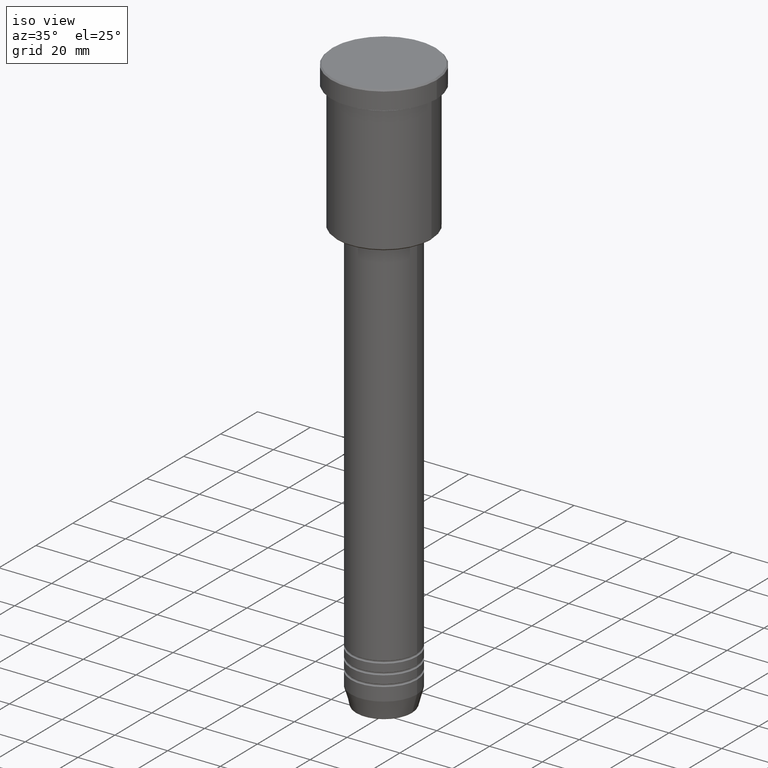
[diagram: clean part render]
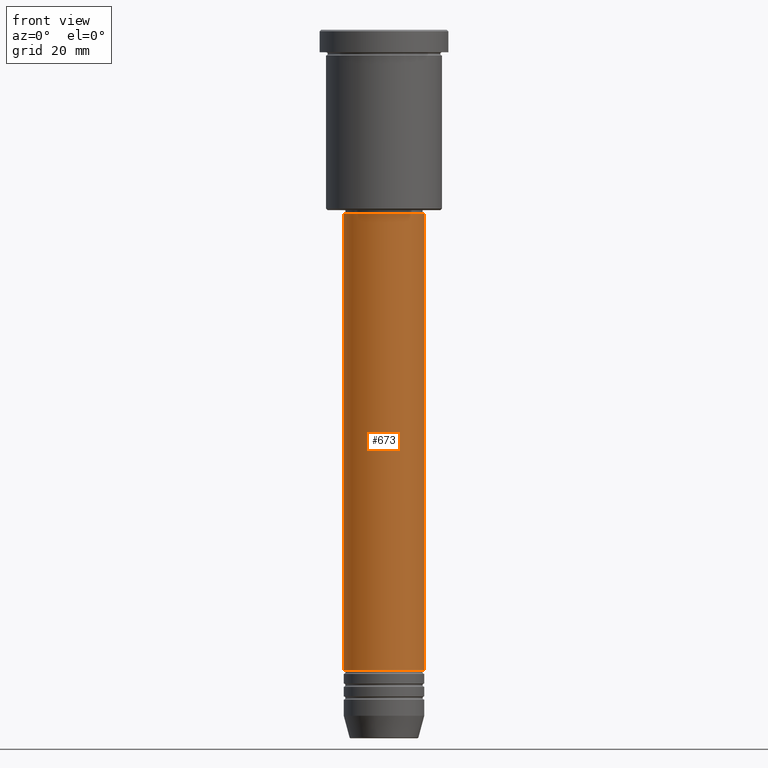
[diagram: tour spotlight — one face highlighted and labeled with its STEP entity id]
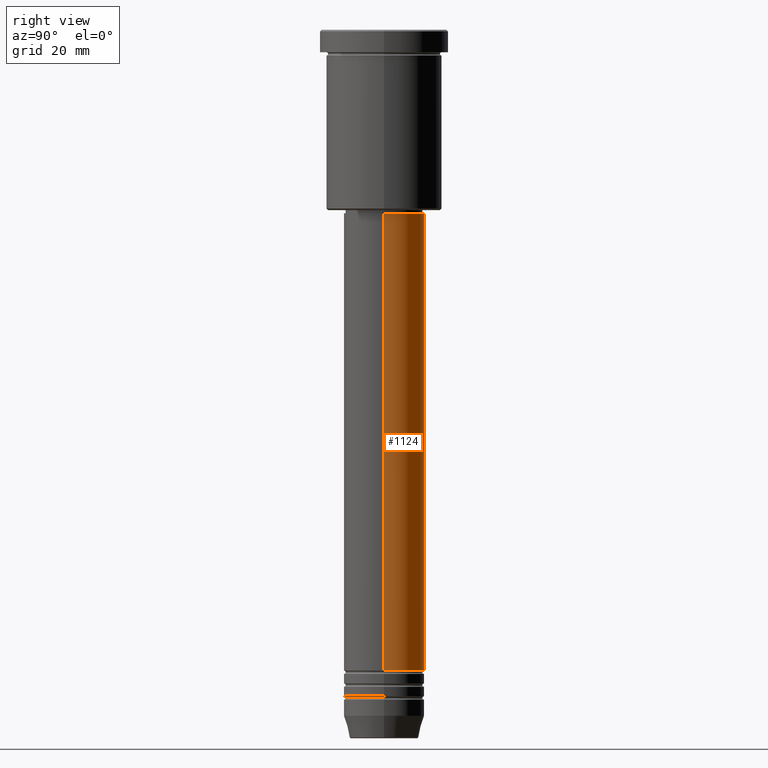
[diagram: tour spotlight — one face highlighted and labeled with its STEP entity id]
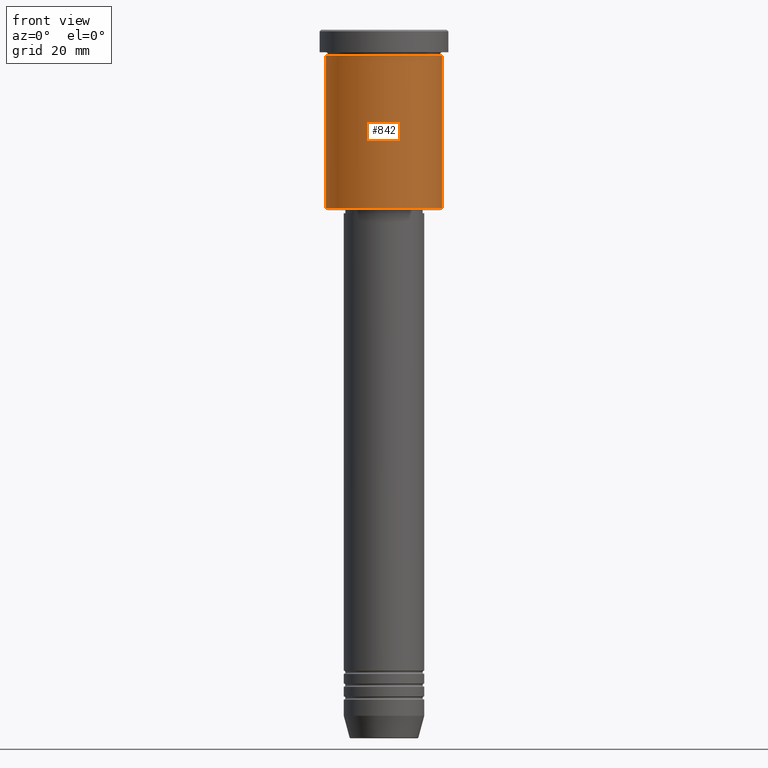
[diagram: tour spotlight — one face highlighted and labeled with its STEP entity id]
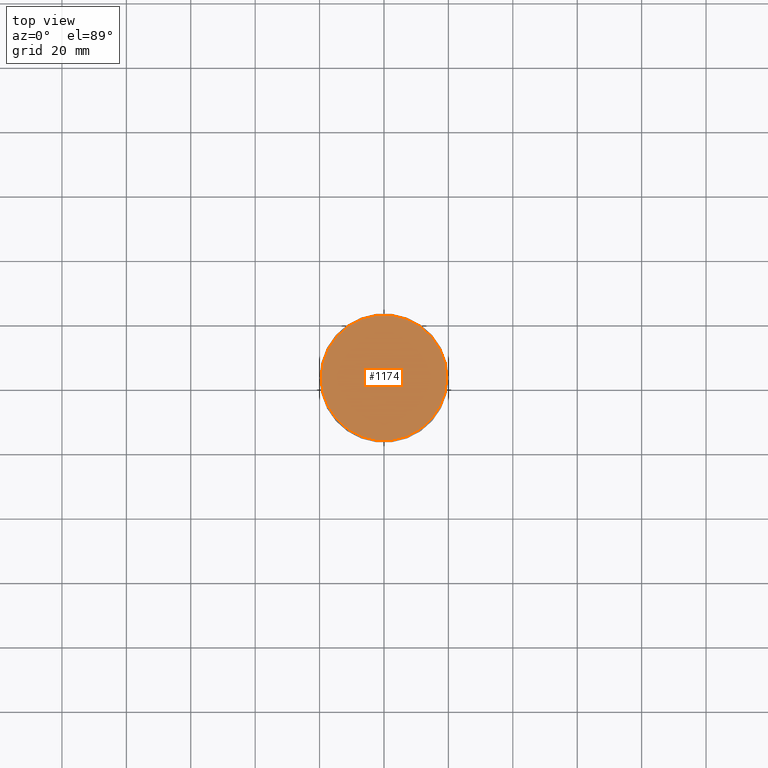
[diagram: tour spotlight — one face highlighted and labeled with its STEP entity id]
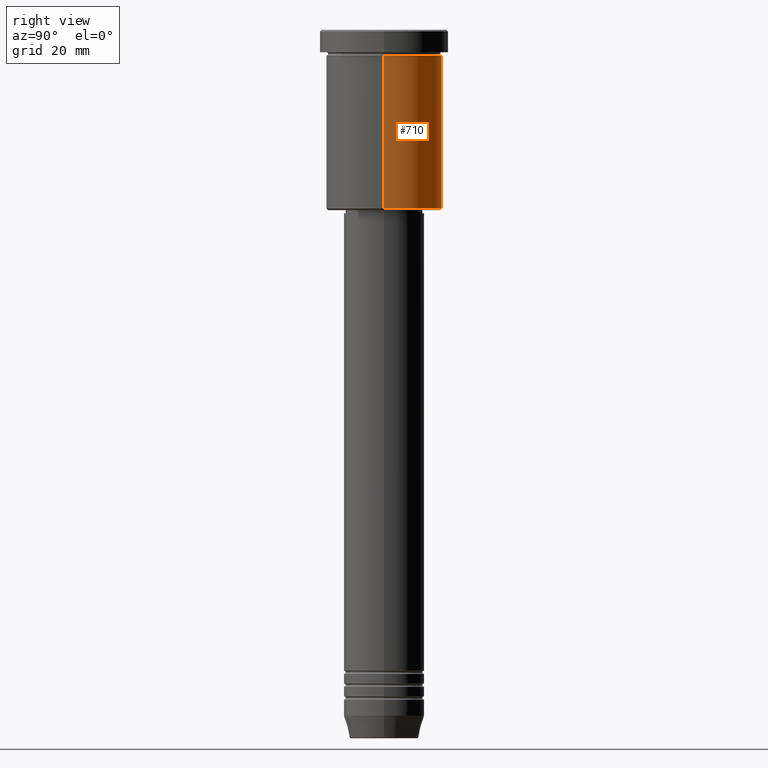
[diagram: tour spotlight — one face highlighted and labeled with its STEP entity id]
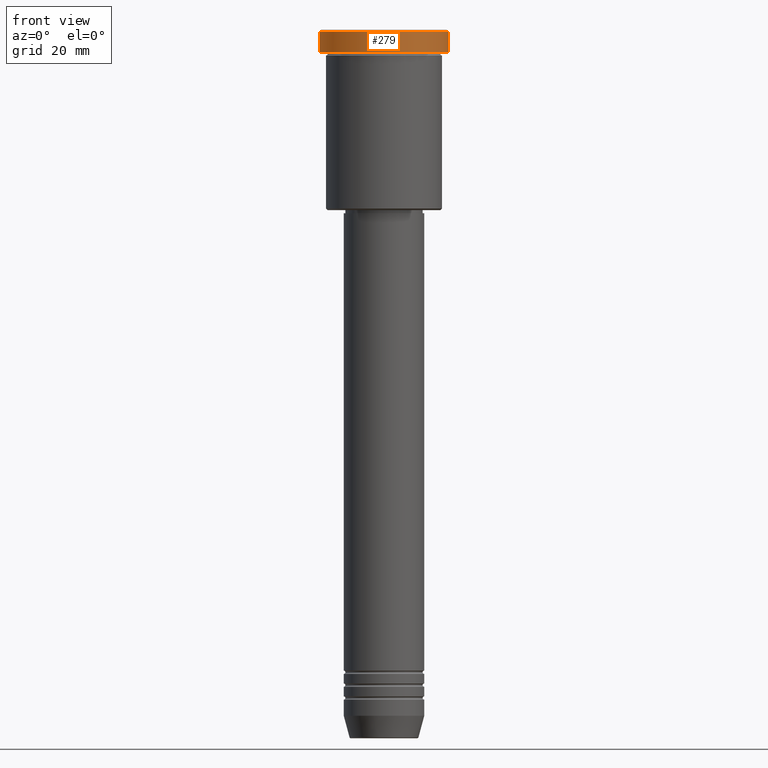
[diagram: tour spotlight — one face highlighted and labeled with its STEP entity id]
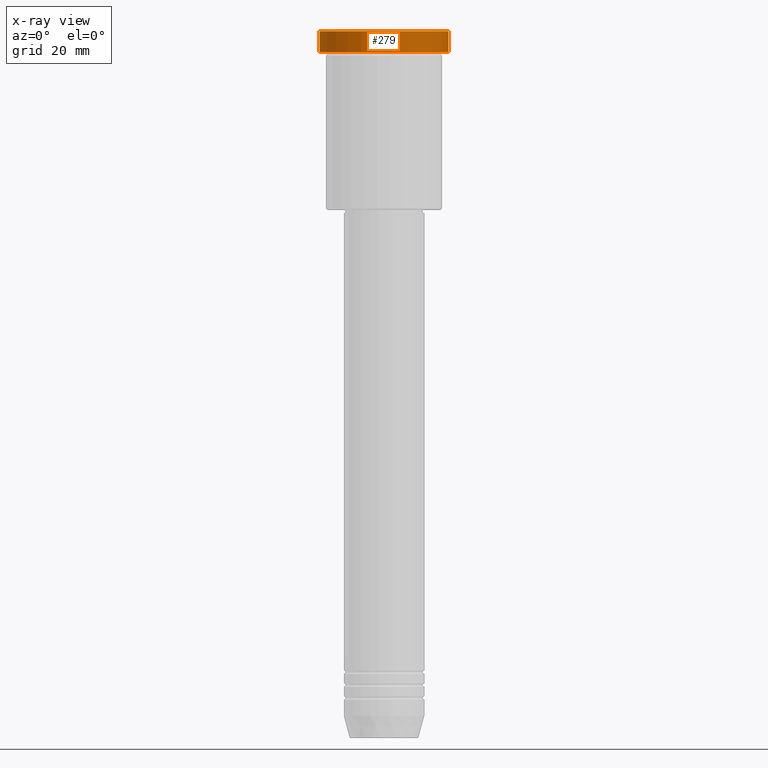
[diagram: x-ray of the same camera — body ghosted, this tour face saturated]
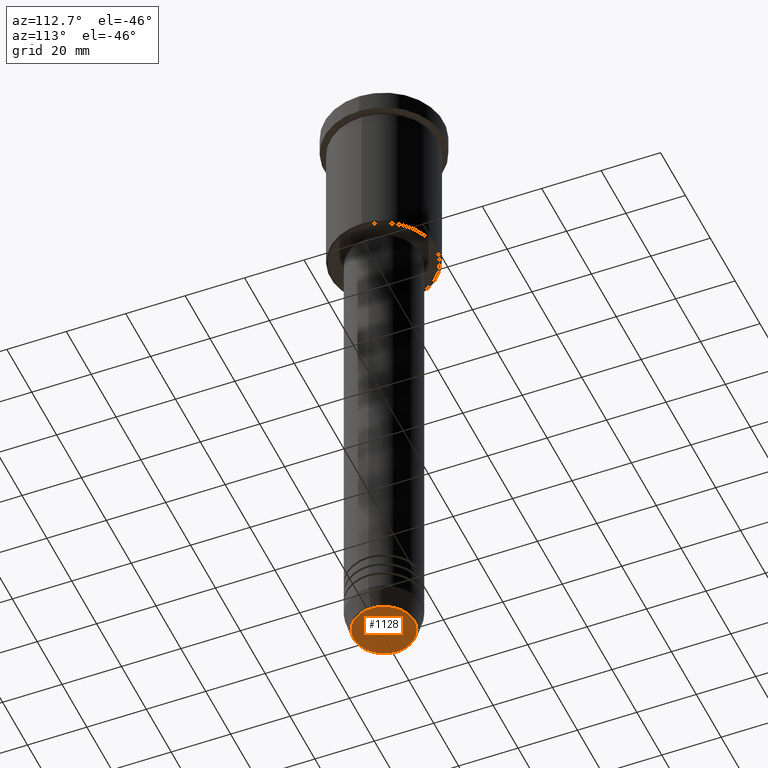
[diagram: tour spotlight — one face highlighted and labeled with its STEP entity id]
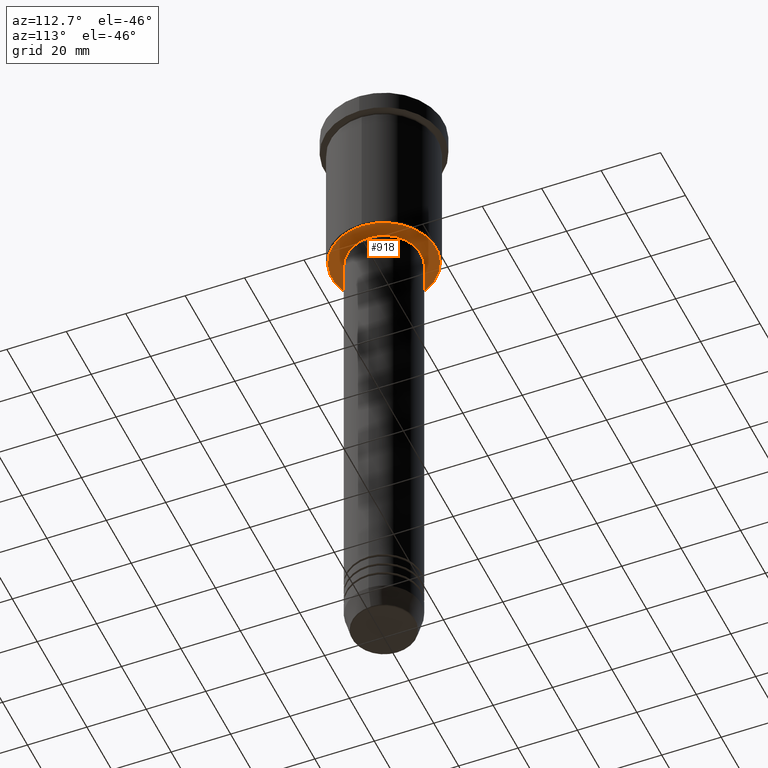
[diagram: tour spotlight — one face highlighted and labeled with its STEP entity id]
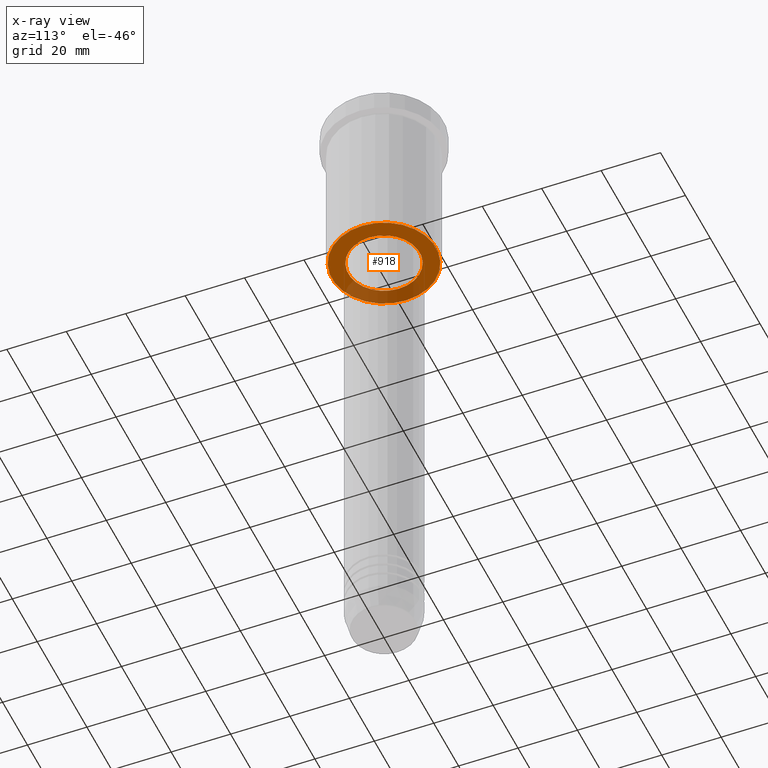
[diagram: x-ray of the same camera — body ghosted, this tour face saturated]
A machine part: a face-by-face anatomy tour. The part has 43 B-rep faces; the first image is the clean iso view, then the 8 largest visible faces are spotlighted one at a time (largest first), each with its STEP entity span.

Face 1 — front view, entity #673. In plain terms, the highlighted cylindrical surface (partial cylindrical patch) has radius 12.5 mm, axis along (-0, -0, 1).
Definition (entity closure, byte-faithful):
#49 = VERTEX_POINT ( 'NONE', #917 ) ;
#58 = CARTESIAN_POINT ( 'NONE',  ( 12.50000000000000000, 0.000000000000000000, -57.00000000000002842 ) ) ;
#86 = CARTESIAN_POINT ( 'NONE',  ( -12.50000000000000000, 1.530808498934191521E-15, -198.9999999999999716 ) ) ;
#124 = CARTESIAN_POINT ( 'NONE',  ( -12.50000000000000000, 1.530808498934191521E-15, -57.00000000000002842 ) ) ;
#130 = CARTESIAN_POINT ( 'NONE',  ( 0.000000000000000000, 0.000000000000000000, 0.000000000000000000 ) ) ;
#202 = VERTEX_POINT ( 'NONE', #86 ) ;
#234 = VERTEX_POINT ( 'NONE', #58 ) ;
#236 = DIRECTION ( 'NONE',  ( -0.000000000000000000, -0.000000000000000000, 1.000000000000000000 ) ) ;
#243 = CIRCLE ( 'NONE', #774, 12.50000000000000000 ) ;
#324 = ORIENTED_EDGE ( 'NONE', *, *, #818, .T. ) ;
#325 = LINE ( 'NONE', #511, #1106 ) ;
#331 = EDGE_CURVE ( 'NONE', #202, #695, #1144, .T. ) ;
#338 = EDGE_CURVE ( 'NONE', #695, #234, #1079, .T. ) ;
#461 = DIRECTION ( 'NONE',  ( -0.000000000000000000, -0.000000000000000000, 1.000000000000000000 ) ) ;
#493 = FACE_OUTER_BOUND ( 'NONE', #788, .T. ) ;
#511 = CARTESIAN_POINT ( 'NONE',  ( 12.50000000000000000, 0.000000000000000000, 0.000000000000000000 ) ) ;
#546 = DIRECTION ( 'NONE',  ( 1.000000000000000000, 0.000000000000000000, 0.000000000000000000 ) ) ;
#569 = AXIS2_PLACEMENT_3D ( 'NONE', #130, #573, #759 ) ;
#573 = DIRECTION ( 'NONE',  ( -0.000000000000000000, -0.000000000000000000, 1.000000000000000000 ) ) ;
#646 = DIRECTION ( 'NONE',  ( 1.000000000000000000, 0.000000000000000000, 0.000000000000000000 ) ) ;
#672 = CARTESIAN_POINT ( 'NONE',  ( -12.50000000000000000, 1.530808498934191521E-15, 0.000000000000000000 ) ) ;
#673 = ADVANCED_FACE ( 'NONE', ( #493 ), #743, .T. ) ;
#695 = VERTEX_POINT ( 'NONE', #124 ) ;
#737 = DIRECTION ( 'NONE',  ( -0.000000000000000000, -0.000000000000000000, 1.000000000000000000 ) ) ;
#743 = CYLINDRICAL_SURFACE ( 'NONE', #569, 12.50000000000000000 ) ;
#759 = DIRECTION ( 'NONE',  ( 1.000000000000000000, 0.000000000000000000, 0.000000000000000000 ) ) ;
#762 = CARTESIAN_POINT ( 'NONE',  ( 0.000000000000000000, 0.000000000000000000, -198.9999999999999716 ) ) ;
#774 = AXIS2_PLACEMENT_3D ( 'NONE', #762, #737, #546 ) ;
#786 = ORIENTED_EDGE ( 'NONE', *, *, #338, .F. ) ;
#788 = EDGE_LOOP ( 'NONE', ( #1123, #324, #1063, #786 ) ) ;
#804 = EDGE_CURVE ( 'NONE', #49, #234, #325, .T. ) ;
#818 = EDGE_CURVE ( 'NONE', #202, #49, #243, .T. ) ;
#875 = VECTOR ( 'NONE', #940, 1000.000000000000000 ) ;
#917 = CARTESIAN_POINT ( 'NONE',  ( 12.50000000000000000, 0.000000000000000000, -198.9999999999999716 ) ) ;
#922 = CARTESIAN_POINT ( 'NONE',  ( 0.000000000000000000, 0.000000000000000000, -57.00000000000002842 ) ) ;
#927 = AXIS2_PLACEMENT_3D ( 'NONE', #922, #461, #646 ) ;
#940 = DIRECTION ( 'NONE',  ( -0.000000000000000000, -0.000000000000000000, 1.000000000000000000 ) ) ;
#1063 = ORIENTED_EDGE ( 'NONE', *, *, #804, .T. ) ;
#1079 = CIRCLE ( 'NONE', #927, 12.50000000000000000 ) ;
#1106 = VECTOR ( 'NONE', #236, 1000.000000000000000 ) ;
#1123 = ORIENTED_EDGE ( 'NONE', *, *, #331, .F. ) ;
#1144 = LINE ( 'NONE', #672, #875 ) ;

Face 2 — right view, entity #1124. In plain terms, the highlighted cylindrical surface (partial cylindrical patch) has radius 12.5 mm, axis along (-0, -0, 1).
Definition (entity closure, byte-faithful):
#2 = CYLINDRICAL_SURFACE ( 'NONE', #796, 12.50000000000000000 ) ;
#4 = EDGE_CURVE ( 'NONE', #49, #202, #718, .T. ) ;
#49 = VERTEX_POINT ( 'NONE', #917 ) ;
#52 = ORIENTED_EDGE ( 'NONE', *, *, #331, .T. ) ;
#58 = CARTESIAN_POINT ( 'NONE',  ( 12.50000000000000000, 0.000000000000000000, -57.00000000000002842 ) ) ;
#86 = CARTESIAN_POINT ( 'NONE',  ( -12.50000000000000000, 1.530808498934191521E-15, -198.9999999999999716 ) ) ;
#106 = ORIENTED_EDGE ( 'NONE', *, *, #900, .F. ) ;
#124 = CARTESIAN_POINT ( 'NONE',  ( -12.50000000000000000, 1.530808498934191521E-15, -57.00000000000002842 ) ) ;
#173 = AXIS2_PLACEMENT_3D ( 'NONE', #664, #1036, #207 ) ;
#202 = VERTEX_POINT ( 'NONE', #86 ) ;
#207 = DIRECTION ( 'NONE',  ( 1.000000000000000000, 0.000000000000000000, 0.000000000000000000 ) ) ;
#234 = VERTEX_POINT ( 'NONE', #58 ) ;
#236 = DIRECTION ( 'NONE',  ( -0.000000000000000000, -0.000000000000000000, 1.000000000000000000 ) ) ;
#325 = LINE ( 'NONE', #511, #1106 ) ;
#331 = EDGE_CURVE ( 'NONE', #202, #695, #1144, .T. ) ;
#350 = DIRECTION ( 'NONE',  ( -0.000000000000000000, -0.000000000000000000, 1.000000000000000000 ) ) ;
#423 = ORIENTED_EDGE ( 'NONE', *, *, #804, .F. ) ;
#459 = CARTESIAN_POINT ( 'NONE',  ( 0.000000000000000000, 0.000000000000000000, 0.000000000000000000 ) ) ;
#511 = CARTESIAN_POINT ( 'NONE',  ( 12.50000000000000000, 0.000000000000000000, 0.000000000000000000 ) ) ;
#644 = DIRECTION ( 'NONE',  ( 1.000000000000000000, 0.000000000000000000, 0.000000000000000000 ) ) ;
#664 = CARTESIAN_POINT ( 'NONE',  ( 0.000000000000000000, 0.000000000000000000, -57.00000000000002842 ) ) ;
#672 = CARTESIAN_POINT ( 'NONE',  ( -12.50000000000000000, 1.530808498934191521E-15, 0.000000000000000000 ) ) ;
#680 = CIRCLE ( 'NONE', #173, 12.50000000000000000 ) ;
#695 = VERTEX_POINT ( 'NONE', #124 ) ;
#718 = CIRCLE ( 'NONE', #990, 12.50000000000000000 ) ;
#796 = AXIS2_PLACEMENT_3D ( 'NONE', #459, #829, #644 ) ;
#804 = EDGE_CURVE ( 'NONE', #49, #234, #325, .T. ) ;
#829 = DIRECTION ( 'NONE',  ( -0.000000000000000000, -0.000000000000000000, 1.000000000000000000 ) ) ;
#875 = VECTOR ( 'NONE', #940, 1000.000000000000000 ) ;
#889 = DIRECTION ( 'NONE',  ( 1.000000000000000000, 0.000000000000000000, 0.000000000000000000 ) ) ;
#900 = EDGE_CURVE ( 'NONE', #234, #695, #680, .T. ) ;
#917 = CARTESIAN_POINT ( 'NONE',  ( 12.50000000000000000, 0.000000000000000000, -198.9999999999999716 ) ) ;
#940 = DIRECTION ( 'NONE',  ( -0.000000000000000000, -0.000000000000000000, 1.000000000000000000 ) ) ;
#990 = AXIS2_PLACEMENT_3D ( 'NONE', #1072, #350, #889 ) ;
#1036 = DIRECTION ( 'NONE',  ( -0.000000000000000000, -0.000000000000000000, 1.000000000000000000 ) ) ;
#1072 = CARTESIAN_POINT ( 'NONE',  ( 0.000000000000000000, 0.000000000000000000, -198.9999999999999716 ) ) ;
#1106 = VECTOR ( 'NONE', #236, 1000.000000000000000 ) ;
#1110 = FACE_OUTER_BOUND ( 'NONE', #1172, .T. ) ;
#1113 = ORIENTED_EDGE ( 'NONE', *, *, #4, .T. ) ;
#1124 = ADVANCED_FACE ( 'NONE', ( #1110 ), #2, .T. ) ;
#1144 = LINE ( 'NONE', #672, #875 ) ;
#1172 = EDGE_LOOP ( 'NONE', ( #1113, #52, #106, #423 ) ) ;

Face 3 — front view, entity #842. In plain terms, the highlighted cylindrical surface (partial cylindrical patch) has radius 18 mm, axis along (-0, -0, 1).
Definition (entity closure, byte-faithful):
#15 = LINE ( 'NONE', #457, #306 ) ;
#21 = FACE_OUTER_BOUND ( 'NONE', #1082, .T. ) ;
#60 = AXIS2_PLACEMENT_3D ( 'NONE', #298, #440, #712 ) ;
#83 = EDGE_CURVE ( 'NONE', #815, #431, #15, .T. ) ;
#221 = LINE ( 'NONE', #856, #667 ) ;
#261 = CYLINDRICAL_SURFACE ( 'NONE', #663, 18.00000000000000000 ) ;
#263 = CIRCLE ( 'NONE', #615, 18.00000000000000000 ) ;
#298 = CARTESIAN_POINT ( 'NONE',  ( 0.000000000000000000, 0.000000000000000000, -7.999999999999996447 ) ) ;
#306 = VECTOR ( 'NONE', #562, 1000.000000000000000 ) ;
#343 = ORIENTED_EDGE ( 'NONE', *, *, #585, .F. ) ;
#407 = DIRECTION ( 'NONE',  ( -0.000000000000000000, -0.000000000000000000, 1.000000000000000000 ) ) ;
#424 = CARTESIAN_POINT ( 'NONE',  ( 0.000000000000000000, 0.000000000000000000, 0.000000000000000000 ) ) ;
#431 = VERTEX_POINT ( 'NONE', #689 ) ;
#440 = DIRECTION ( 'NONE',  ( -0.000000000000000000, -0.000000000000000000, 1.000000000000000000 ) ) ;
#442 = CARTESIAN_POINT ( 'NONE',  ( 0.000000000000000000, 0.000000000000000000, -55.50000000000004263 ) ) ;
#457 = CARTESIAN_POINT ( 'NONE',  ( 18.00000000000000000, 0.000000000000000000, 0.000000000000000000 ) ) ;
#544 = VERTEX_POINT ( 'NONE', #761 ) ;
#562 = DIRECTION ( 'NONE',  ( -0.000000000000000000, -0.000000000000000000, 1.000000000000000000 ) ) ;
#585 = EDGE_CURVE ( 'NONE', #544, #1014, #221, .T. ) ;
#601 = EDGE_CURVE ( 'NONE', #1014, #431, #814, .T. ) ;
#615 = AXIS2_PLACEMENT_3D ( 'NONE', #442, #1089, #1173 ) ;
#663 = AXIS2_PLACEMENT_3D ( 'NONE', #424, #1016, #837 ) ;
#667 = VECTOR ( 'NONE', #407, 1000.000000000000000 ) ;
#689 = CARTESIAN_POINT ( 'NONE',  ( 18.00000000000000000, 0.000000000000000000, -7.999999999999996447 ) ) ;
#712 = DIRECTION ( 'NONE',  ( 1.000000000000000000, 0.000000000000000000, 0.000000000000000000 ) ) ;
#761 = CARTESIAN_POINT ( 'NONE',  ( -18.00000000000000000, 2.204364238465235428E-15, -55.50000000000004263 ) ) ;
#772 = CARTESIAN_POINT ( 'NONE',  ( 18.00000000000000000, 0.000000000000000000, -55.50000000000004263 ) ) ;
#814 = CIRCLE ( 'NONE', #60, 18.00000000000000000 ) ;
#815 = VERTEX_POINT ( 'NONE', #772 ) ;
#837 = DIRECTION ( 'NONE',  ( 1.000000000000000000, 0.000000000000000000, 0.000000000000000000 ) ) ;
#842 = ADVANCED_FACE ( 'NONE', ( #21 ), #261, .T. ) ;
#856 = CARTESIAN_POINT ( 'NONE',  ( -18.00000000000000000, 2.204364238465235428E-15, 0.000000000000000000 ) ) ;
#938 = ORIENTED_EDGE ( 'NONE', *, *, #83, .T. ) ;
#983 = CARTESIAN_POINT ( 'NONE',  ( -18.00000000000000000, 2.204364238465235428E-15, -7.999999999999996447 ) ) ;
#1014 = VERTEX_POINT ( 'NONE', #983 ) ;
#1016 = DIRECTION ( 'NONE',  ( -0.000000000000000000, -0.000000000000000000, 1.000000000000000000 ) ) ;
#1065 = EDGE_CURVE ( 'NONE', #544, #815, #263, .T. ) ;
#1082 = EDGE_LOOP ( 'NONE', ( #343, #1137, #938, #1142 ) ) ;
#1089 = DIRECTION ( 'NONE',  ( -0.000000000000000000, -0.000000000000000000, 1.000000000000000000 ) ) ;
#1137 = ORIENTED_EDGE ( 'NONE', *, *, #1065, .T. ) ;
#1142 = ORIENTED_EDGE ( 'NONE', *, *, #601, .F. ) ;
#1173 = DIRECTION ( 'NONE',  ( -1.000000000000000000, 0.000000000000000000, 0.000000000000000000 ) ) ;

Face 4 — top view, entity #1174. In plain terms, the highlighted planar face has unit normal (0, -0, 1).
Definition (entity closure, byte-faithful):
#3 = CARTESIAN_POINT ( 'NONE',  ( 19.49999999999998934, 2.418677428316021937E-15, 0.000000000000000000 ) ) ;
#65 = EDGE_CURVE ( 'NONE', #288, #409, #616, .T. ) ;
#103 = EDGE_LOOP ( 'NONE', ( #460, #1091 ) ) ;
#192 = AXIS2_PLACEMENT_3D ( 'NONE', #760, #674, #1107 ) ;
#277 = CIRCLE ( 'NONE', #873, 19.49999999999998934 ) ;
#288 = VERTEX_POINT ( 'NONE', #367 ) ;
#351 = AXIS2_PLACEMENT_3D ( 'NONE', #563, #738, #1025 ) ;
#367 = CARTESIAN_POINT ( 'NONE',  ( -19.49999999999998934, 0.000000000000000000, 0.000000000000000000 ) ) ;
#368 = FACE_OUTER_BOUND ( 'NONE', #103, .T. ) ;
#409 = VERTEX_POINT ( 'NONE', #3 ) ;
#460 = ORIENTED_EDGE ( 'NONE', *, *, #65, .T. ) ;
#563 = CARTESIAN_POINT ( 'NONE',  ( 0.000000000000000000, 0.000000000000000000, 0.000000000000000000 ) ) ;
#616 = CIRCLE ( 'NONE', #192, 19.49999999999998934 ) ;
#674 = DIRECTION ( 'NONE',  ( -0.000000000000000000, -0.000000000000000000, 1.000000000000000000 ) ) ;
#738 = DIRECTION ( 'NONE',  ( 0.000000000000000000, -0.000000000000000000, 1.000000000000000000 ) ) ;
#760 = CARTESIAN_POINT ( 'NONE',  ( 0.000000000000000000, 0.000000000000000000, 0.000000000000000000 ) ) ;
#768 = DIRECTION ( 'NONE',  ( -0.000000000000000000, -0.000000000000000000, 1.000000000000000000 ) ) ;
#792 = EDGE_CURVE ( 'NONE', #409, #288, #277, .T. ) ;
#865 = CARTESIAN_POINT ( 'NONE',  ( 0.000000000000000000, 0.000000000000000000, 0.000000000000000000 ) ) ;
#873 = AXIS2_PLACEMENT_3D ( 'NONE', #865, #768, #1156 ) ;
#995 = PLANE ( 'NONE',  #351 ) ;
#1025 = DIRECTION ( 'NONE',  ( 1.000000000000000000, 0.000000000000000000, 0.000000000000000000 ) ) ;
#1091 = ORIENTED_EDGE ( 'NONE', *, *, #792, .T. ) ;
#1107 = DIRECTION ( 'NONE',  ( 1.000000000000000000, 0.000000000000000000, 0.000000000000000000 ) ) ;
#1156 = DIRECTION ( 'NONE',  ( 1.000000000000000000, 0.000000000000000000, 0.000000000000000000 ) ) ;
#1174 = ADVANCED_FACE ( 'NONE', ( #368 ), #995, .T. ) ;

Face 5 — right view, entity #710. In plain terms, the highlighted cylindrical surface (partial cylindrical patch) has radius 18 mm, axis along (-0, -0, 1).
Definition (entity closure, byte-faithful):
#15 = LINE ( 'NONE', #457, #306 ) ;
#43 = DIRECTION ( 'NONE',  ( -1.000000000000000000, 0.000000000000000000, 0.000000000000000000 ) ) ;
#83 = EDGE_CURVE ( 'NONE', #815, #431, #15, .T. ) ;
#138 = AXIS2_PLACEMENT_3D ( 'NONE', #777, #344, #787 ) ;
#160 = EDGE_CURVE ( 'NONE', #815, #544, #451, .T. ) ;
#221 = LINE ( 'NONE', #856, #667 ) ;
#235 = CYLINDRICAL_SURFACE ( 'NONE', #138, 18.00000000000000000 ) ;
#273 = ORIENTED_EDGE ( 'NONE', *, *, #83, .F. ) ;
#280 = EDGE_LOOP ( 'NONE', ( #763, #1115, #630, #273 ) ) ;
#306 = VECTOR ( 'NONE', #562, 1000.000000000000000 ) ;
#340 = CARTESIAN_POINT ( 'NONE',  ( 0.000000000000000000, 0.000000000000000000, -7.999999999999996447 ) ) ;
#344 = DIRECTION ( 'NONE',  ( -0.000000000000000000, -0.000000000000000000, 1.000000000000000000 ) ) ;
#394 = AXIS2_PLACEMENT_3D ( 'NONE', #340, #627, #893 ) ;
#407 = DIRECTION ( 'NONE',  ( -0.000000000000000000, -0.000000000000000000, 1.000000000000000000 ) ) ;
#431 = VERTEX_POINT ( 'NONE', #689 ) ;
#448 = CIRCLE ( 'NONE', #394, 18.00000000000000000 ) ;
#451 = CIRCLE ( 'NONE', #948, 18.00000000000000000 ) ;
#457 = CARTESIAN_POINT ( 'NONE',  ( 18.00000000000000000, 0.000000000000000000, 0.000000000000000000 ) ) ;
#482 = DIRECTION ( 'NONE',  ( -0.000000000000000000, -0.000000000000000000, 1.000000000000000000 ) ) ;
#491 = EDGE_CURVE ( 'NONE', #431, #1014, #448, .T. ) ;
#544 = VERTEX_POINT ( 'NONE', #761 ) ;
#562 = DIRECTION ( 'NONE',  ( -0.000000000000000000, -0.000000000000000000, 1.000000000000000000 ) ) ;
#585 = EDGE_CURVE ( 'NONE', #544, #1014, #221, .T. ) ;
#627 = DIRECTION ( 'NONE',  ( -0.000000000000000000, -0.000000000000000000, 1.000000000000000000 ) ) ;
#630 = ORIENTED_EDGE ( 'NONE', *, *, #491, .F. ) ;
#667 = VECTOR ( 'NONE', #407, 1000.000000000000000 ) ;
#683 = CARTESIAN_POINT ( 'NONE',  ( 0.000000000000000000, 0.000000000000000000, -55.50000000000004263 ) ) ;
#689 = CARTESIAN_POINT ( 'NONE',  ( 18.00000000000000000, 0.000000000000000000, -7.999999999999996447 ) ) ;
#710 = ADVANCED_FACE ( 'NONE', ( #1048 ), #235, .T. ) ;
#761 = CARTESIAN_POINT ( 'NONE',  ( -18.00000000000000000, 2.204364238465235428E-15, -55.50000000000004263 ) ) ;
#763 = ORIENTED_EDGE ( 'NONE', *, *, #160, .T. ) ;
#772 = CARTESIAN_POINT ( 'NONE',  ( 18.00000000000000000, 0.000000000000000000, -55.50000000000004263 ) ) ;
#777 = CARTESIAN_POINT ( 'NONE',  ( 0.000000000000000000, 0.000000000000000000, 0.000000000000000000 ) ) ;
#787 = DIRECTION ( 'NONE',  ( 1.000000000000000000, 0.000000000000000000, 0.000000000000000000 ) ) ;
#815 = VERTEX_POINT ( 'NONE', #772 ) ;
#856 = CARTESIAN_POINT ( 'NONE',  ( -18.00000000000000000, 2.204364238465235428E-15, 0.000000000000000000 ) ) ;
#893 = DIRECTION ( 'NONE',  ( 1.000000000000000000, 0.000000000000000000, 0.000000000000000000 ) ) ;
#948 = AXIS2_PLACEMENT_3D ( 'NONE', #683, #482, #43 ) ;
#983 = CARTESIAN_POINT ( 'NONE',  ( -18.00000000000000000, 2.204364238465235428E-15, -7.999999999999996447 ) ) ;
#1014 = VERTEX_POINT ( 'NONE', #983 ) ;
#1048 = FACE_OUTER_BOUND ( 'NONE', #280, .T. ) ;
#1115 = ORIENTED_EDGE ( 'NONE', *, *, #585, .T. ) ;

Face 6 — front view, entity #279. An x-ray twin of the same camera follows (body ghosted, this face saturated) — the face is partly hidden behind the body. In plain terms, the highlighted cylindrical surface (partial cylindrical patch) has radius 20 mm, axis along (-0, -0, 1).
Definition (entity closure, byte-faithful):
#28 = ORIENTED_EDGE ( 'NONE', *, *, #1031, .T. ) ;
#53 = CARTESIAN_POINT ( 'NONE',  ( 20.00000000000000000, 0.000000000000000000, -6.999999999999995559 ) ) ;
#84 = AXIS2_PLACEMENT_3D ( 'NONE', #87, #153, #979 ) ;
#87 = CARTESIAN_POINT ( 'NONE',  ( 0.000000000000000000, 0.000000000000000000, -0.4999999999999970024 ) ) ;
#127 = CYLINDRICAL_SURFACE ( 'NONE', #1135, 20.00000000000000000 ) ;
#135 = LINE ( 'NONE', #579, #1166 ) ;
#142 = ORIENTED_EDGE ( 'NONE', *, *, #526, .F. ) ;
#148 = FACE_OUTER_BOUND ( 'NONE', #610, .T. ) ;
#153 = DIRECTION ( 'NONE',  ( 0.000000000000000000, 0.000000000000000000, -1.000000000000000000 ) ) ;
#180 = CARTESIAN_POINT ( 'NONE',  ( 20.00000000000000000, 0.000000000000000000, 0.000000000000000000 ) ) ;
#238 = DIRECTION ( 'NONE',  ( -0.000000000000000000, -0.000000000000000000, 1.000000000000000000 ) ) ;
#239 = VERTEX_POINT ( 'NONE', #402 ) ;
#247 = VERTEX_POINT ( 'NONE', #413 ) ;
#279 = ADVANCED_FACE ( 'NONE', ( #148 ), #127, .T. ) ;
#356 = LINE ( 'NONE', #180, #926 ) ;
#402 = CARTESIAN_POINT ( 'NONE',  ( 20.00000000000000000, 0.000000000000000000, -0.4999999999999970024 ) ) ;
#413 = CARTESIAN_POINT ( 'NONE',  ( -20.00000000000000000, 2.449293598294706513E-15, -6.999999999999995559 ) ) ;
#425 = VERTEX_POINT ( 'NONE', #53 ) ;
#489 = DIRECTION ( 'NONE',  ( -0.000000000000000000, -0.000000000000000000, 1.000000000000000000 ) ) ;
#526 = EDGE_CURVE ( 'NONE', #247, #945, #135, .T. ) ;
#579 = CARTESIAN_POINT ( 'NONE',  ( -20.00000000000000000, 2.449293598294706513E-15, 0.000000000000000000 ) ) ;
#610 = EDGE_LOOP ( 'NONE', ( #142, #825, #696, #28 ) ) ;
#649 = CIRCLE ( 'NONE', #681, 20.00000000000000000 ) ;
#681 = AXIS2_PLACEMENT_3D ( 'NONE', #803, #238, #877 ) ;
#696 = ORIENTED_EDGE ( 'NONE', *, *, #1052, .T. ) ;
#750 = CARTESIAN_POINT ( 'NONE',  ( 0.000000000000000000, 0.000000000000000000, 0.000000000000000000 ) ) ;
#803 = CARTESIAN_POINT ( 'NONE',  ( 0.000000000000000000, 0.000000000000000000, -6.999999999999995559 ) ) ;
#825 = ORIENTED_EDGE ( 'NONE', *, *, #1071, .T. ) ;
#844 = DIRECTION ( 'NONE',  ( -0.000000000000000000, -0.000000000000000000, 1.000000000000000000 ) ) ;
#877 = DIRECTION ( 'NONE',  ( 1.000000000000000000, 0.000000000000000000, 0.000000000000000000 ) ) ;
#926 = VECTOR ( 'NONE', #1157, 1000.000000000000000 ) ;
#945 = VERTEX_POINT ( 'NONE', #1013 ) ;
#979 = DIRECTION ( 'NONE',  ( 1.000000000000000000, 0.000000000000000000, 0.000000000000000000 ) ) ;
#1013 = CARTESIAN_POINT ( 'NONE',  ( -20.00000000000000000, 2.449293598294706513E-15, -0.4999999999999970024 ) ) ;
#1031 = EDGE_CURVE ( 'NONE', #239, #945, #1133, .T. ) ;
#1052 = EDGE_CURVE ( 'NONE', #425, #239, #356, .T. ) ;
#1071 = EDGE_CURVE ( 'NONE', #247, #425, #649, .T. ) ;
#1132 = DIRECTION ( 'NONE',  ( 1.000000000000000000, 0.000000000000000000, 0.000000000000000000 ) ) ;
#1133 = CIRCLE ( 'NONE', #84, 20.00000000000000000 ) ;
#1135 = AXIS2_PLACEMENT_3D ( 'NONE', #750, #489, #1132 ) ;
#1157 = DIRECTION ( 'NONE',  ( -0.000000000000000000, -0.000000000000000000, 1.000000000000000000 ) ) ;
#1166 = VECTOR ( 'NONE', #844, 1000.000000000000000 ) ;

Face 7 — auxiliary view, entity #1128. In plain terms, the highlighted planar face has unit normal (0, -0, 1).
Definition (entity closure, byte-faithful):
#17 = DIRECTION ( 'NONE',  ( 1.000000000000000000, 0.000000000000000000, 0.000000000000000000 ) ) ;
#114 = CIRCLE ( 'NONE', #480, 10.24069215899266538 ) ;
#170 = EDGE_CURVE ( 'NONE', #224, #929, #776, .T. ) ;
#224 = VERTEX_POINT ( 'NONE', #994 ) ;
#244 = ORIENTED_EDGE ( 'NONE', *, *, #806, .T. ) ;
#264 = AXIS2_PLACEMENT_3D ( 'NONE', #541, #993, #1092 ) ;
#285 = DIRECTION ( 'NONE',  ( 0.000000000000000000, -0.000000000000000000, 1.000000000000000000 ) ) ;
#289 = CARTESIAN_POINT ( 'NONE',  ( -10.24069215899266538, 1.283696036640842967E-15, -219.9999999999999716 ) ) ;
#401 = CARTESIAN_POINT ( 'NONE',  ( 0.000000000000000000, 0.000000000000000000, -219.9999999999999716 ) ) ;
#464 = CARTESIAN_POINT ( 'NONE',  ( 0.000000000000000000, 0.000000000000000000, -219.9999999999999716 ) ) ;
#480 = AXIS2_PLACEMENT_3D ( 'NONE', #401, #954, #1160 ) ;
#541 = CARTESIAN_POINT ( 'NONE',  ( 0.000000000000000000, 0.000000000000000000, -219.9999999999999716 ) ) ;
#567 = FACE_OUTER_BOUND ( 'NONE', #600, .T. ) ;
#600 = EDGE_LOOP ( 'NONE', ( #905, #244 ) ) ;
#776 = CIRCLE ( 'NONE', #264, 10.24069215899266538 ) ;
#806 = EDGE_CURVE ( 'NONE', #929, #224, #114, .T. ) ;
#891 = AXIS2_PLACEMENT_3D ( 'NONE', #464, #285, #17 ) ;
#905 = ORIENTED_EDGE ( 'NONE', *, *, #170, .T. ) ;
#929 = VERTEX_POINT ( 'NONE', #289 ) ;
#954 = DIRECTION ( 'NONE',  ( 0.000000000000000000, 0.000000000000000000, -1.000000000000000000 ) ) ;
#993 = DIRECTION ( 'NONE',  ( 0.000000000000000000, 0.000000000000000000, -1.000000000000000000 ) ) ;
#994 = CARTESIAN_POINT ( 'NONE',  ( 10.24069215899266538, 0.000000000000000000, -219.9999999999999716 ) ) ;
#1092 = DIRECTION ( 'NONE',  ( 1.000000000000000000, 0.000000000000000000, 0.000000000000000000 ) ) ;
#1128 = ADVANCED_FACE ( 'NONE', ( #567 ), #1175, .F. ) ;
#1160 = DIRECTION ( 'NONE',  ( 1.000000000000000000, 0.000000000000000000, 0.000000000000000000 ) ) ;
#1175 = PLANE ( 'NONE',  #891 ) ;

Face 8 — auxiliary view, entity #918. An x-ray twin of the same camera follows (body ghosted, this face saturated) — the face is partly hidden behind the body. In plain terms, the highlighted planar face has unit normal (0, 0, -1).
Definition (entity closure, byte-faithful):
#13 = CARTESIAN_POINT ( 'NONE',  ( -12.00000000000000000, 1.469576158976823947E-15, -56.00000000000000000 ) ) ;
#27 = DIRECTION ( 'NONE',  ( -1.000000000000000000, 0.000000000000000000, 0.000000000000000000 ) ) ;
#29 = EDGE_CURVE ( 'NONE', #781, #75, #666, .T. ) ;
#38 = CIRCLE ( 'NONE', #647, 17.50000000000001421 ) ;
#56 = DIRECTION ( 'NONE',  ( -0.000000000000000000, -0.000000000000000000, 1.000000000000000000 ) ) ;
#59 = CARTESIAN_POINT ( 'NONE',  ( 0.000000000000000000, 18.00000000000000000, -56.00000000000000000 ) ) ;
#68 = DIRECTION ( 'NONE',  ( 1.000000000000000000, 0.000000000000000000, 0.000000000000000000 ) ) ;
#71 = EDGE_LOOP ( 'NONE', ( #586, #370 ) ) ;
#75 = VERTEX_POINT ( 'NONE', #1116 ) ;
#81 = CARTESIAN_POINT ( 'NONE',  ( 0.000000000000000000, 0.000000000000000000, -56.00000000000000000 ) ) ;
#85 = AXIS2_PLACEMENT_3D ( 'NONE', #406, #56, #166 ) ;
#112 = CARTESIAN_POINT ( 'NONE',  ( 0.000000000000000000, 0.000000000000000000, -56.00000000000000000 ) ) ;
#117 = CIRCLE ( 'NONE', #85, 12.00000000000000000 ) ;
#123 = FACE_OUTER_BOUND ( 'NONE', #174, .T. ) ;
#163 = EDGE_CURVE ( 'NONE', #840, #864, #117, .T. ) ;
#166 = DIRECTION ( 'NONE',  ( 1.000000000000000000, 0.000000000000000000, 0.000000000000000000 ) ) ;
#174 = EDGE_LOOP ( 'NONE', ( #1119, #1066 ) ) ;
#218 = DIRECTION ( 'NONE',  ( -1.000000000000000000, 0.000000000000000000, 0.000000000000000000 ) ) ;
#305 = AXIS2_PLACEMENT_3D ( 'NONE', #608, #518, #68 ) ;
#313 = DIRECTION ( 'NONE',  ( 0.000000000000000000, 0.000000000000000000, -1.000000000000000000 ) ) ;
#370 = ORIENTED_EDGE ( 'NONE', *, *, #163, .T. ) ;
#406 = CARTESIAN_POINT ( 'NONE',  ( 0.000000000000000000, 0.000000000000000000, -56.00000000000000000 ) ) ;
#414 = DIRECTION ( 'NONE',  ( -1.000000000000000000, 0.000000000000000000, -0.000000000000000000 ) ) ;
#468 = AXIS2_PLACEMENT_3D ( 'NONE', #81, #313, #218 ) ;
#500 = PLANE ( 'NONE',  #987 ) ;
#518 = DIRECTION ( 'NONE',  ( -0.000000000000000000, -0.000000000000000000, 1.000000000000000000 ) ) ;
#586 = ORIENTED_EDGE ( 'NONE', *, *, #1080, .T. ) ;
#608 = CARTESIAN_POINT ( 'NONE',  ( 0.000000000000000000, 0.000000000000000000, -56.00000000000000000 ) ) ;
#647 = AXIS2_PLACEMENT_3D ( 'NONE', #112, #1120, #27 ) ;
#666 = CIRCLE ( 'NONE', #468, 17.50000000000001421 ) ;
#734 = FACE_BOUND ( 'NONE', #71, .T. ) ;
#756 = CIRCLE ( 'NONE', #305, 12.00000000000000000 ) ;
#781 = VERTEX_POINT ( 'NONE', #977 ) ;
#840 = VERTEX_POINT ( 'NONE', #13 ) ;
#843 = CARTESIAN_POINT ( 'NONE',  ( 12.00000000000000000, 0.000000000000000000, -56.00000000000000000 ) ) ;
#864 = VERTEX_POINT ( 'NONE', #843 ) ;
#867 = DIRECTION ( 'NONE',  ( 0.000000000000000000, 0.000000000000000000, -1.000000000000000000 ) ) ;
#869 = EDGE_CURVE ( 'NONE', #75, #781, #38, .T. ) ;
#918 = ADVANCED_FACE ( 'NONE', ( #123, #734 ), #500, .T. ) ;
#977 = CARTESIAN_POINT ( 'NONE',  ( 17.50000000000001421, 0.000000000000000000, -56.00000000000000000 ) ) ;
#987 = AXIS2_PLACEMENT_3D ( 'NONE', #59, #867, #414 ) ;
#1066 = ORIENTED_EDGE ( 'NONE', *, *, #869, .T. ) ;
#1080 = EDGE_CURVE ( 'NONE', #864, #840, #756, .T. ) ;
#1116 = CARTESIAN_POINT ( 'NONE',  ( -17.50000000000001421, 2.173748068486552430E-15, -56.00000000000000000 ) ) ;
#1119 = ORIENTED_EDGE ( 'NONE', *, *, #29, .T. ) ;
#1120 = DIRECTION ( 'NONE',  ( 0.000000000000000000, 0.000000000000000000, -1.000000000000000000 ) ) ;